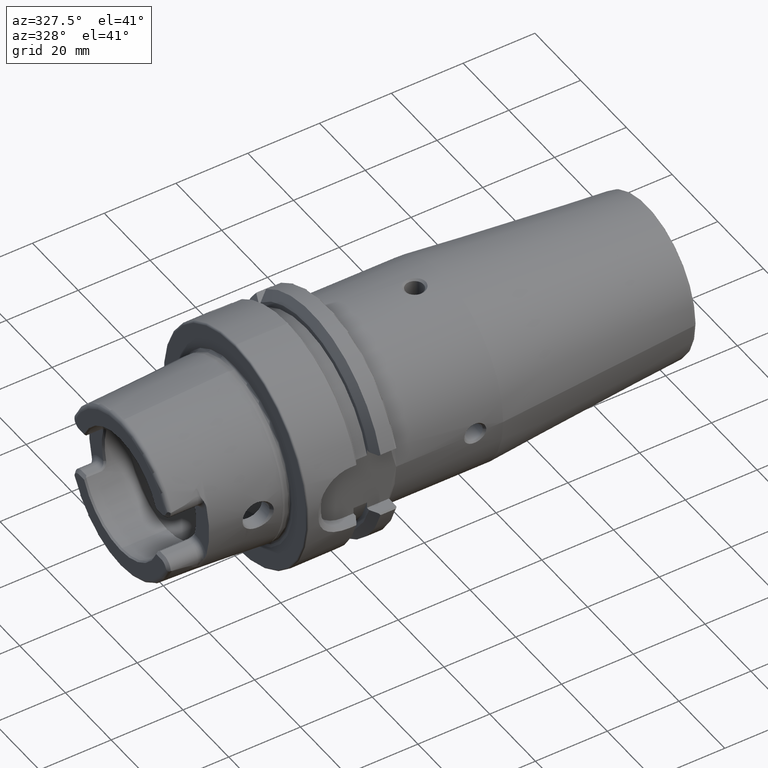
[diagram: clean part render]
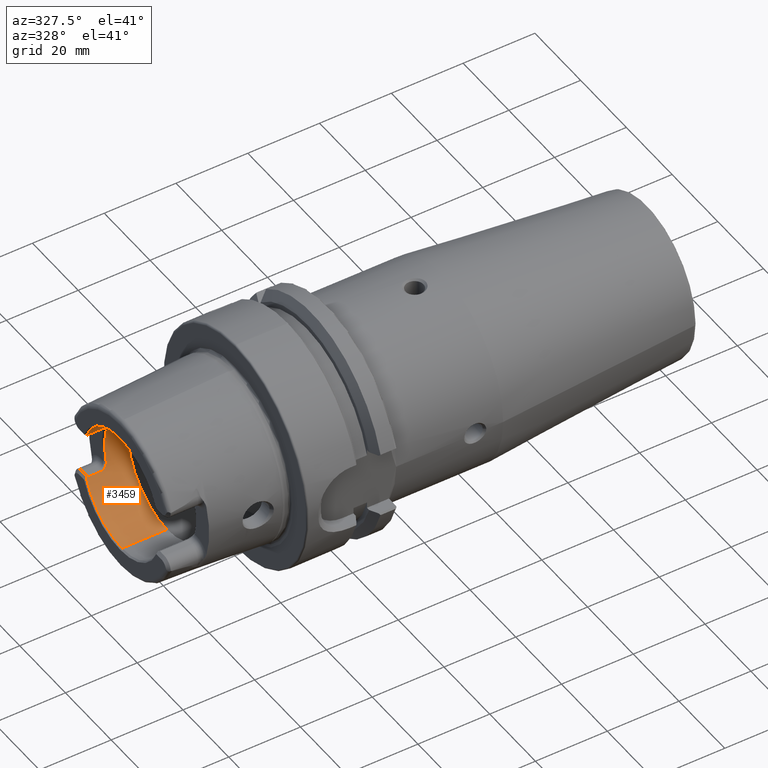
[diagram: same view with one face highlighted and labeled with its STEP entity id]
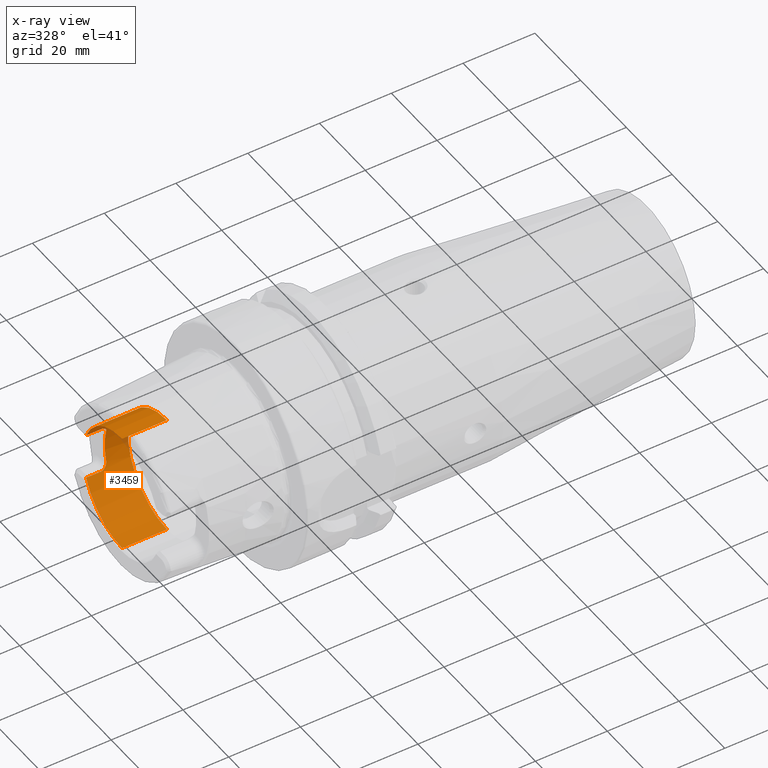
[diagram: x-ray of the same camera — body ghosted, the highlighted face saturated]
A machine part, auxiliary view. The second image highlights one B-rep face of the part: STEP entity #3459.
The next image is the same camera in x-ray: the body ghosted, the highlighted face saturated — about 1% of this face is hidden behind the body in this view.
In plain terms, the highlighted cylindrical surface (partial cylindrical patch) has radius 17 mm, axis along (1, 0, 0).
Its self-contained STEP definition (entity closure, byte-faithful):
#116=CARTESIAN_POINT('',(-1.240263167237E0,6.172427283033E-1,
-2.588319709773E-1));
#123=CARTESIAN_POINT('',(-1.240157480315E0,0.E0,0.E0));
#124=DIRECTION('',(1.E0,0.E0,0.E0));
#125=DIRECTION('',(0.E0,0.E0,-1.E0));
#126=AXIS2_PLACEMENT_3D('',#123,#124,#125);
#128=DIRECTION('',(-9.999997644930E-1,3.975065776437E-4,5.594661836353E-4));
#129=VECTOR('',#128,1.575860472550E-1);
#130=CARTESIAN_POINT('',(-1.082677157095E0,6.171800868130E-1,
-2.589201350418E-1));
#131=LINE('',#130,#129);
#132=CARTESIAN_POINT('',(-1.003937007868E0,6.439489903152E-1,
-1.824296953903E-1));
#133=CARTESIAN_POINT('',(-1.003873495326E0,6.419998391896E-1,
-1.893099014333E-1));
#134=CARTESIAN_POINT('',(-1.005790006697E0,6.380108707888E-1,
-2.025734615804E-1));
#135=CARTESIAN_POINT('',(-1.014034170036E0,6.315699021878E-1,
-2.217919931407E-1));
#136=CARTESIAN_POINT('',(-1.027163110676E0,6.256346905813E-1,
-2.379254884496E-1));
#137=CARTESIAN_POINT('',(-1.043974064142E0,6.208463000487E-1,
-2.500739181725E-1));
#138=CARTESIAN_POINT('',(-1.063265722442E0,6.178287622871E-1,
-2.573828538411E-1));
#139=CARTESIAN_POINT('',(-1.076116059209E0,6.171638474551E-1,
-2.589588443074E-1));
#140=CARTESIAN_POINT('',(-1.082677157095E0,6.171800868130E-1,
-2.589201350418E-1));
#142=CARTESIAN_POINT('',(-1.003937007874E0,0.E0,0.E0));
#143=DIRECTION('',(-1.E0,0.E0,0.E0));
#144=DIRECTION('',(0.E0,9.621355498715E-1,2.725714285714E-1));
#145=AXIS2_PLACEMENT_3D('',#142,#143,#144);
#147=CARTESIAN_POINT('',(-1.082677166350E0,6.171800868508E-1,
2.589201349801E-1));
#148=CARTESIAN_POINT('',(-1.075944654916E0,6.171746635400E-1,
2.589330623617E-1));
#149=CARTESIAN_POINT('',(-1.062862174218E0,6.178639274253E-1,
2.572992642806E-1));
#150=CARTESIAN_POINT('',(-1.043767634133E0,6.209010374842E-1,
2.499375426321E-1));
#151=CARTESIAN_POINT('',(-1.027058149674E0,6.256710560917E-1,
2.378305377443E-1));
#152=CARTESIAN_POINT('',(-1.013910330828E0,6.316389217333E-1,
2.215978479207E-1));
#153=CARTESIAN_POINT('',(-1.005746900413E0,6.380707860248E-1,
2.023815884882E-1));
#154=CARTESIAN_POINT('',(-1.003873739536E0,6.420226564173E-1,
1.892293601065E-1));
#155=CARTESIAN_POINT('',(-1.003937007862E0,6.439489901075E-1,
1.824296961288E-1));
#157=DIRECTION('',(9.999997644933E-1,-3.975063864626E-4,5.594658857577E-4));
#158=VECTOR('',#157,1.575860379995E-1);
#159=CARTESIAN_POINT('',(-1.240263167237E0,6.172427283073E-1,
2.588319709678E-1));
#160=LINE('',#159,#158);
#161=CARTESIAN_POINT('',(-1.240157480315E0,0.E0,0.E0));
#162=DIRECTION('',(1.E0,0.E0,0.E0));
#163=DIRECTION('',(0.E0,9.221396591734E-1,3.868571428571E-1));
#164=AXIS2_PLACEMENT_3D('',#161,#162,#163);
#166=CARTESIAN_POINT('',(-7.478750158970E-1,0.E0,0.E0));
#167=DIRECTION('',(1.E0,0.E0,0.E0));
#168=DIRECTION('',(0.E0,0.E0,-1.E0));
#169=AXIS2_PLACEMENT_3D('',#166,#167,#168);
#332=CARTESIAN_POINT('',(-1.240263167237E0,6.172427283073E-1,
2.588319709678E-1));
#584=DIRECTION('',(-1.E0,-5.054732763053E-9,2.843629848249E-11));
#585=VECTOR('',#584,4.922824643937E-1);
#586=CARTESIAN_POINT('',(-7.478750158970E-1,0.E0,-6.692913385827E-1));
#587=LINE('',#586,#585);
#593=DIRECTION('',(-1.E0,5.054731832909E-9,-2.844103452028E-11));
#594=VECTOR('',#593,4.922824643937E-1);
#595=CARTESIAN_POINT('',(-7.478750158970E-1,0.E0,6.692913385827E-1));
#596=LINE('',#595,#594);
#2822=CARTESIAN_POINT('',(-7.478750158970E-1,0.E0,-6.692913385827E-1));
#2823=CARTESIAN_POINT('',(-7.478750158970E-1,0.E0,6.692913385827E-1));
#2824=VERTEX_POINT('',#2822);
#2825=VERTEX_POINT('',#2823);
#2989=VERTEX_POINT('',#132);
#2990=VERTEX_POINT('',#140);
#2993=CARTESIAN_POINT('',(-1.003937007874E0,6.439489900715E-1,
1.824296962880E-1));
#2994=VERTEX_POINT('',#2993);
#2997=VERTEX_POINT('',#147);
#3153=CARTESIAN_POINT('',(-1.240157480315E0,0.E0,6.692913385827E-1));
#3154=VERTEX_POINT('',#3153);
#3155=VERTEX_POINT('',#332);
#3158=VERTEX_POINT('',#116);
#3159=CARTESIAN_POINT('',(-1.240157480315E0,0.E0,-6.692913385827E-1));
#3160=VERTEX_POINT('',#3159);
#3433=CARTESIAN_POINT('',(0.E0,0.E0,0.E0));
#3434=DIRECTION('',(1.E0,0.E0,0.E0));
#3435=DIRECTION('',(0.E0,0.E0,1.E0));
#3436=AXIS2_PLACEMENT_3D('',#3433,#3434,#3435);
#3437=CYLINDRICAL_SURFACE('',#3436,6.692913385827E-1);
#3438=ORIENTED_EDGE('',*,*,#3421,.T.);
#3440=ORIENTED_EDGE('',*,*,#3439,.F.);
#3442=ORIENTED_EDGE('',*,*,#3441,.F.);
#3444=ORIENTED_EDGE('',*,*,#3443,.F.);
#3446=ORIENTED_EDGE('',*,*,#3445,.F.);
#3448=ORIENTED_EDGE('',*,*,#3447,.F.);
#3450=ORIENTED_EDGE('',*,*,#3449,.T.);
#3452=ORIENTED_EDGE('',*,*,#3451,.F.);
#3454=ORIENTED_EDGE('',*,*,#3453,.F.);
#3456=ORIENTED_EDGE('',*,*,#3455,.T.);
#3457=EDGE_LOOP('',(#3438,#3440,#3442,#3444,#3446,#3448,#3450,#3452,#3454,
#3456));
#3458=FACE_OUTER_BOUND('',#3457,.F.);
#3459=ADVANCED_FACE('',(#3458),#3437,.F.);
#127=CIRCLE('',#126,6.692913385827E-1);
#141=B_SPLINE_CURVE_WITH_KNOTS('',3,(#132,#133,#134,#135,#136,#137,#138,#139,
#140),.UNSPECIFIED.,.F.,.F.,(4,1,1,1,1,1,4),(0.E0,1.666666666667E-1,
3.333333333333E-1,5.E-1,6.666666666667E-1,8.333333333333E-1,1.E0),
.UNSPECIFIED.);
#146=CIRCLE('',#145,6.692913385827E-1);
#156=B_SPLINE_CURVE_WITH_KNOTS('',3,(#147,#148,#149,#150,#151,#152,#153,#154,
#155),.UNSPECIFIED.,.F.,.F.,(4,1,1,1,1,1,4),(0.E0,1.666666666667E-1,
3.333333333333E-1,5.E-1,6.666666666667E-1,8.333333333333E-1,1.E0),
.UNSPECIFIED.);
#165=CIRCLE('',#164,6.692913385827E-1);
#170=CIRCLE('',#169,6.692913385827E-1);
#3421=EDGE_CURVE('',#3160,#3158,#127,.T.);
#3439=EDGE_CURVE('',#2990,#3158,#131,.T.);
#3441=EDGE_CURVE('',#2989,#2990,#141,.T.);
#3443=EDGE_CURVE('',#2994,#2989,#146,.T.);
#3445=EDGE_CURVE('',#2997,#2994,#156,.T.);
#3447=EDGE_CURVE('',#3155,#2997,#160,.T.);
#3449=EDGE_CURVE('',#3155,#3154,#165,.T.);
#3451=EDGE_CURVE('',#2825,#3154,#596,.T.);
#3453=EDGE_CURVE('',#2824,#2825,#170,.T.);
#3455=EDGE_CURVE('',#2824,#3160,#587,.T.);